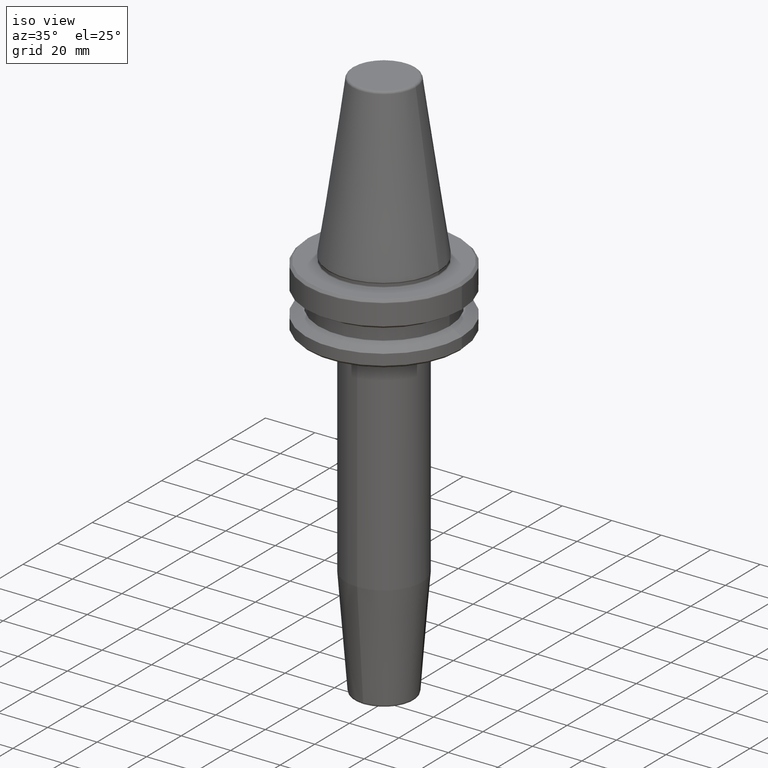
[diagram: clean part render]
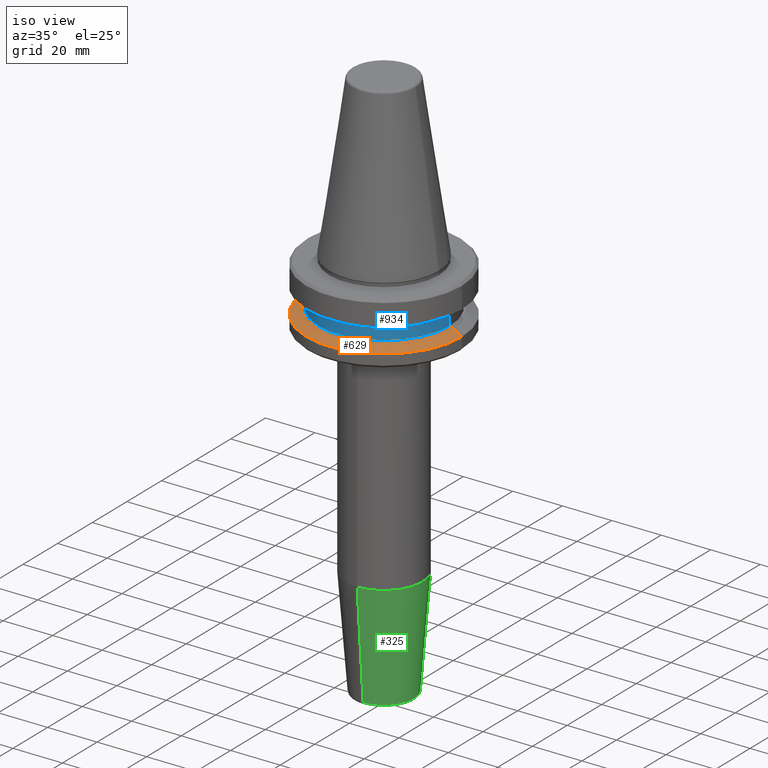
[diagram: same view with three faces highlighted in distinct colors, each labeled with its STEP entity id]
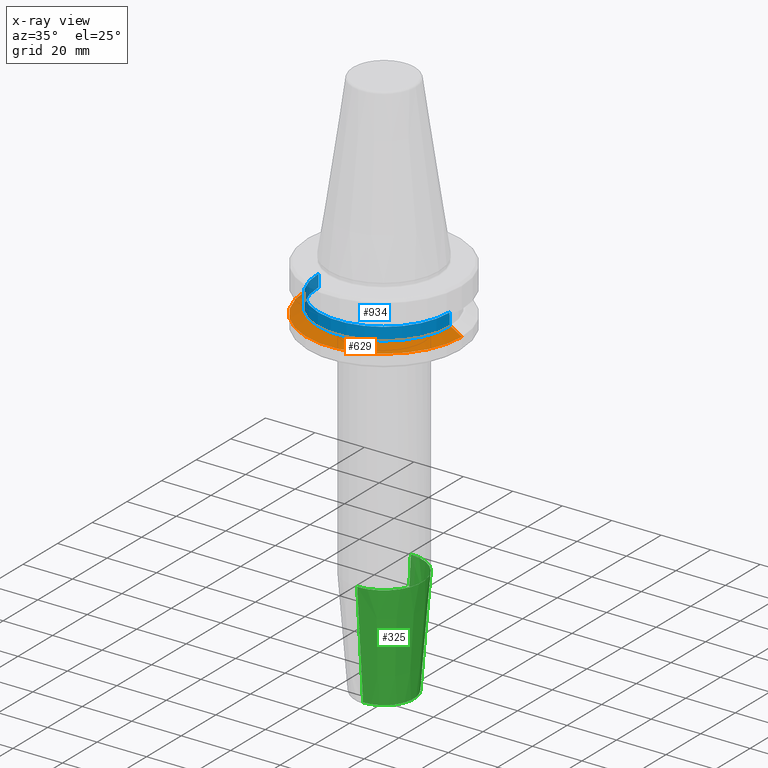
[diagram: x-ray of the same camera — body ghosted, the three highlighted faces saturated]
A machine part, iso view with three faces highlighted in distinct colors.
The next image is the same camera in x-ray (body ghosted, the three faces saturated) — at least one of them is partly hidden behind the body in this view.
Their STEP definitions:

[orange] entity #629 — the highlighted conical surface has half-angle 60 deg.
#22 = DIRECTION ( 'NONE',  ( -0.0000000000000000000, -0.0000000000000000000, 1.000000000000000000 ) ) ;
#74 = CARTESIAN_POINT ( 'NONE',  ( 0.0000000000000000000, 0.0000000000000000000, -21.60014200631675500 ) ) ;
#98 = CARTESIAN_POINT ( 'NONE',  ( -27.16962701892216700, 0.0000000000000000000, -19.10000000000000500 ) ) ;
#113 = DIRECTION ( 'NONE',  ( 0.0000000000000000000, 0.0000000000000000000, -1.000000000000000000 ) ) ;
#159 = LINE ( 'NONE', #443, #673 ) ;
#162 = ORIENTED_EDGE ( 'NONE', *, *, #644, .F. ) ;
#172 = ORIENTED_EDGE ( 'NONE', *, *, #1007, .T. ) ;
#177 = DIRECTION ( 'NONE',  ( 1.000000000000000000, 0.0000000000000000000, 0.0000000000000000000 ) ) ;
#216 = CARTESIAN_POINT ( 'NONE',  ( 0.0000000000000000000, 0.0000000000000000000, -19.10000000000000500 ) ) ;
#251 = DIRECTION ( 'NONE',  ( -0.8660254037844403700, 0.0000000000000000000, -0.4999999999999970000 ) ) ;
#279 = VERTEX_POINT ( 'NONE', #502 ) ;
#311 = ORIENTED_EDGE ( 'NONE', *, *, #871, .F. ) ;
#319 = EDGE_CURVE ( 'NONE', #436, #734, #1074, .T. ) ;
#330 = VERTEX_POINT ( 'NONE', #539 ) ;
#419 = CARTESIAN_POINT ( 'NONE',  ( -31.50000000000000000, 3.857637417314162700E-015, -21.60014200631675500 ) ) ;
#436 = VERTEX_POINT ( 'NONE', #98 ) ;
#438 = AXIS2_PLACEMENT_3D ( 'NONE', #216, #113, #895 ) ;
#443 = CARTESIAN_POINT ( 'NONE',  ( 27.16962701892216700, 3.327319676275047600E-015, -19.10000000000000500 ) ) ;
#487 = CIRCLE ( 'NONE', #505, 27.16962701892216700 ) ;
#502 = CARTESIAN_POINT ( 'NONE',  ( 31.50000000000000000, 0.0000000000000000000, -21.60014200631675500 ) ) ;
#505 = AXIS2_PLACEMENT_3D ( 'NONE', #603, #22, #708 ) ;
#539 = CARTESIAN_POINT ( 'NONE',  ( 27.16962701892216700, 3.592478546794605500E-015, -19.10000000000000500 ) ) ;
#546 = DIRECTION ( 'NONE',  ( 0.8660254037844403700, 1.060575238724909000E-016, -0.4999999999999970000 ) ) ;
#548 = VECTOR ( 'NONE', #251, 1000.000000000000000 ) ;
#603 = CARTESIAN_POINT ( 'NONE',  ( 0.0000000000000000000, 0.0000000000000000000, -19.10000000000000500 ) ) ;
#629 = ADVANCED_FACE ( 'NONE', ( #1277 ), #724, .T. ) ;
#644 = EDGE_CURVE ( 'NONE', #436, #330, #487, .T. ) ;
#673 = VECTOR ( 'NONE', #546, 1000.000000000000000 ) ;
#708 = DIRECTION ( 'NONE',  ( 1.000000000000000000, 0.0000000000000000000, 0.0000000000000000000 ) ) ;
#724 = CONICAL_SURFACE ( 'NONE', #438, 27.16962701892216700, 1.047197551196601200 ) ;
#734 = VERTEX_POINT ( 'NONE', #419 ) ;
#752 = EDGE_LOOP ( 'NONE', ( #311, #162, #987, #172 ) ) ;
#768 = DIRECTION ( 'NONE',  ( -0.0000000000000000000, -0.0000000000000000000, 1.000000000000000000 ) ) ;
#871 = EDGE_CURVE ( 'NONE', #330, #279, #159, .T. ) ;
#895 = DIRECTION ( 'NONE',  ( -1.000000000000000000, 0.0000000000000000000, 0.0000000000000000000 ) ) ;
#987 = ORIENTED_EDGE ( 'NONE', *, *, #319, .T. ) ;
#1007 = EDGE_CURVE ( 'NONE', #734, #279, #1026, .T. ) ;
#1023 = AXIS2_PLACEMENT_3D ( 'NONE', #74, #768, #177 ) ;
#1026 = CIRCLE ( 'NONE', #1023, 31.50000000000000000 ) ;
#1074 = LINE ( 'NONE', #1083, #548 ) ;
#1083 = CARTESIAN_POINT ( 'NONE',  ( -27.16962701892216700, 0.0000000000000000000, -19.10000000000000500 ) ) ;
#1277 = FACE_OUTER_BOUND ( 'NONE', #752, .T. ) ;

[blue] entity #934 — the highlighted cylindrical surface (partial cylindrical patch) has radius 26.5 mm, axis along (-0, -0, 1).
#63 = DIRECTION ( 'NONE',  ( 1.000000000000000000, 0.0000000000000000000, 0.0000000000000000000 ) ) ;
#64 = FACE_OUTER_BOUND ( 'NONE', #186, .T. ) ;
#82 = VERTEX_POINT ( 'NONE', #1089 ) ;
#103 = DIRECTION ( 'NONE',  ( -0.0000000000000000000, -0.0000000000000000000, 1.000000000000000000 ) ) ;
#111 = CARTESIAN_POINT ( 'NONE',  ( -26.50000000000000000, 3.245314017740485800E-015, 69.75694866325665100 ) ) ;
#126 = VERTEX_POINT ( 'NONE', #427 ) ;
#175 = ORIENTED_EDGE ( 'NONE', *, *, #1236, .F. ) ;
#186 = EDGE_LOOP ( 'NONE', ( #175, #226, #192, #530 ) ) ;
#192 = ORIENTED_EDGE ( 'NONE', *, *, #746, .T. ) ;
#226 = ORIENTED_EDGE ( 'NONE', *, *, #914, .T. ) ;
#257 = VERTEX_POINT ( 'NONE', #1207 ) ;
#294 = CYLINDRICAL_SURFACE ( 'NONE', #817, 26.50000000000000000 ) ;
#374 = CIRCLE ( 'NONE', #547, 26.50000000000000000 ) ;
#427 = CARTESIAN_POINT ( 'NONE',  ( -26.50000000000000000, 3.245314017740485800E-015, -19.10000000000000500 ) ) ;
#530 = ORIENTED_EDGE ( 'NONE', *, *, #1175, .F. ) ;
#547 = AXIS2_PLACEMENT_3D ( 'NONE', #552, #1247, #649 ) ;
#552 = CARTESIAN_POINT ( 'NONE',  ( 0.0000000000000000000, 0.0000000000000000000, -19.10000000000000500 ) ) ;
#649 = DIRECTION ( 'NONE',  ( 1.000000000000000000, 0.0000000000000000000, 0.0000000000000000000 ) ) ;
#691 = CARTESIAN_POINT ( 'NONE',  ( 0.0000000000000000000, 0.0000000000000000000, -14.10000000000000100 ) ) ;
#699 = DIRECTION ( 'NONE',  ( -0.0000000000000000000, -0.0000000000000000000, 1.000000000000000000 ) ) ;
#746 = EDGE_CURVE ( 'NONE', #829, #82, #1069, .T. ) ;
#759 = CARTESIAN_POINT ( 'NONE',  ( 0.0000000000000000000, 0.0000000000000000000, 69.75694866325665100 ) ) ;
#799 = DIRECTION ( 'NONE',  ( 1.000000000000000000, 0.0000000000000000000, 0.0000000000000000000 ) ) ;
#817 = AXIS2_PLACEMENT_3D ( 'NONE', #759, #851, #63 ) ;
#829 = VERTEX_POINT ( 'NONE', #1131 ) ;
#851 = DIRECTION ( 'NONE',  ( -0.0000000000000000000, -0.0000000000000000000, 1.000000000000000000 ) ) ;
#857 = AXIS2_PLACEMENT_3D ( 'NONE', #691, #103, #799 ) ;
#914 = EDGE_CURVE ( 'NONE', #126, #829, #374, .T. ) ;
#917 = CARTESIAN_POINT ( 'NONE',  ( 26.50000000000000000, 0.0000000000000000000, 69.75694866325665100 ) ) ;
#923 = LINE ( 'NONE', #111, #1180 ) ;
#934 = ADVANCED_FACE ( 'NONE', ( #64 ), #294, .T. ) ;
#981 = CIRCLE ( 'NONE', #857, 26.50000000000000000 ) ;
#1044 = VECTOR ( 'NONE', #1220, 1000.000000000000000 ) ;
#1069 = LINE ( 'NONE', #917, #1044 ) ;
#1089 = CARTESIAN_POINT ( 'NONE',  ( 26.50000000000000000, 0.0000000000000000000, -14.10000000000000100 ) ) ;
#1131 = CARTESIAN_POINT ( 'NONE',  ( 26.50000000000000000, 0.0000000000000000000, -19.10000000000000500 ) ) ;
#1175 = EDGE_CURVE ( 'NONE', #257, #82, #981, .T. ) ;
#1180 = VECTOR ( 'NONE', #699, 1000.000000000000000 ) ;
#1207 = CARTESIAN_POINT ( 'NONE',  ( -26.50000000000000000, 3.245314017740485800E-015, -14.10000000000000100 ) ) ;
#1220 = DIRECTION ( 'NONE',  ( -0.0000000000000000000, -0.0000000000000000000, 1.000000000000000000 ) ) ;
#1236 = EDGE_CURVE ( 'NONE', #126, #257, #923, .T. ) ;
#1247 = DIRECTION ( 'NONE',  ( -0.0000000000000000000, -0.0000000000000000000, 1.000000000000000000 ) ) ;

[green] entity #325 — the highlighted conical surface has half-angle 4.5 deg.
#20 = AXIS2_PLACEMENT_3D ( 'NONE', #1234, #635, #50 ) ;
#38 = VECTOR ( 'NONE', #354, 1000.000000000000100 ) ;
#43 = ORIENTED_EDGE ( 'NONE', *, *, #1108, .F. ) ;
#50 = DIRECTION ( 'NONE',  ( 0.0000000000000000000, 1.000000000000000000, 0.0000000000000000000 ) ) ;
#53 = VERTEX_POINT ( 'NONE', #437 ) ;
#81 = CARTESIAN_POINT ( 'NONE',  ( 1.898202538678396800E-015, 15.50000000000000000, -115.5282834233806400 ) ) ;
#84 = FACE_OUTER_BOUND ( 'NONE', #1172, .T. ) ;
#89 = DIRECTION ( 'NONE',  ( 0.0000000000000000000, 1.000000000000000000, 0.0000000000000000000 ) ) ;
#112 = DIRECTION ( 'NONE',  ( 0.0000000000000000000, -7.550453949630298400E-017, 1.000000000000000000 ) ) ;
#196 = VERTEX_POINT ( 'NONE', #922 ) ;
#221 = CARTESIAN_POINT ( 'NONE',  ( 0.0000000000000000000, 9.972523231404220500E-015, -159.0784590957278200 ) ) ;
#239 = EDGE_CURVE ( 'NONE', #1165, #1093, #820, .T. ) ;
#265 = VECTOR ( 'NONE', #332, 1000.000000000000100 ) ;
#325 = ADVANCED_FACE ( 'NONE', ( #84 ), #1016, .T. ) ;
#332 = DIRECTION ( 'NONE',  ( 9.608468044708423300E-018, 0.07845909572783112100, 0.9969173337331289600 ) ) ;
#336 = AXIS2_PLACEMENT_3D ( 'NONE', #1273, #675, #89 ) ;
#354 = DIRECTION ( 'NONE',  ( 0.0000000000000000000, -0.07845909572783124600, 0.9969173337331289600 ) ) ;
#359 = CARTESIAN_POINT ( 'NONE',  ( 0.0000000000000000000, -12.07252684207489000, -159.0784590957278200 ) ) ;
#394 = ORIENTED_EDGE ( 'NONE', *, *, #239, .T. ) ;
#414 = ORIENTED_EDGE ( 'NONE', *, *, #945, .F. ) ;
#437 = CARTESIAN_POINT ( 'NONE',  ( 0.0000000000000000000, -15.49999999999998600, -115.5282834233806400 ) ) ;
#447 = CARTESIAN_POINT ( 'NONE',  ( 1.478458135476752900E-015, 12.07252684207490900, -159.0784590957278200 ) ) ;
#448 = ORIENTED_EDGE ( 'NONE', *, *, #823, .T. ) ;
#499 = DIRECTION ( 'NONE',  ( 0.0000000000000000000, -1.000000000000000000, 0.0000000000000000000 ) ) ;
#635 = DIRECTION ( 'NONE',  ( -0.0000000000000000000, 7.550453949630298400E-017, -1.000000000000000000 ) ) ;
#675 = DIRECTION ( 'NONE',  ( -0.0000000000000000000, 7.550453949630298400E-017, -1.000000000000000000 ) ) ;
#685 = AXIS2_PLACEMENT_3D ( 'NONE', #221, #112, #499 ) ;
#686 = CARTESIAN_POINT ( 'NONE',  ( 0.0000000000000000000, 12.07252684207491100, -159.0784590957278200 ) ) ;
#820 = LINE ( 'NONE', #447, #265 ) ;
#823 = EDGE_CURVE ( 'NONE', #1093, #53, #971, .T. ) ;
#922 = CARTESIAN_POINT ( 'NONE',  ( 1.478458135476753500E-015, -12.07252684207489100, -159.0784590957278200 ) ) ;
#945 = EDGE_CURVE ( 'NONE', #196, #53, #1117, .T. ) ;
#971 = CIRCLE ( 'NONE', #20, 15.49999999999999300 ) ;
#1016 = CONICAL_SURFACE ( 'NONE', #685, 12.07252684207490000, 0.07853981633973103300 ) ;
#1093 = VERTEX_POINT ( 'NONE', #81 ) ;
#1108 = EDGE_CURVE ( 'NONE', #1165, #196, #1186, .T. ) ;
#1117 = LINE ( 'NONE', #359, #38 ) ;
#1165 = VERTEX_POINT ( 'NONE', #686 ) ;
#1172 = EDGE_LOOP ( 'NONE', ( #43, #394, #448, #414 ) ) ;
#1186 = CIRCLE ( 'NONE', #336, 12.07252684207490000 ) ;
#1234 = CARTESIAN_POINT ( 'NONE',  ( 0.0000000000000000000, 6.684287272280548800E-015, -115.5282834233806400 ) ) ;
#1273 = CARTESIAN_POINT ( 'NONE',  ( 0.0000000000000000000, 9.972523231404220500E-015, -159.0784590957278200 ) ) ;